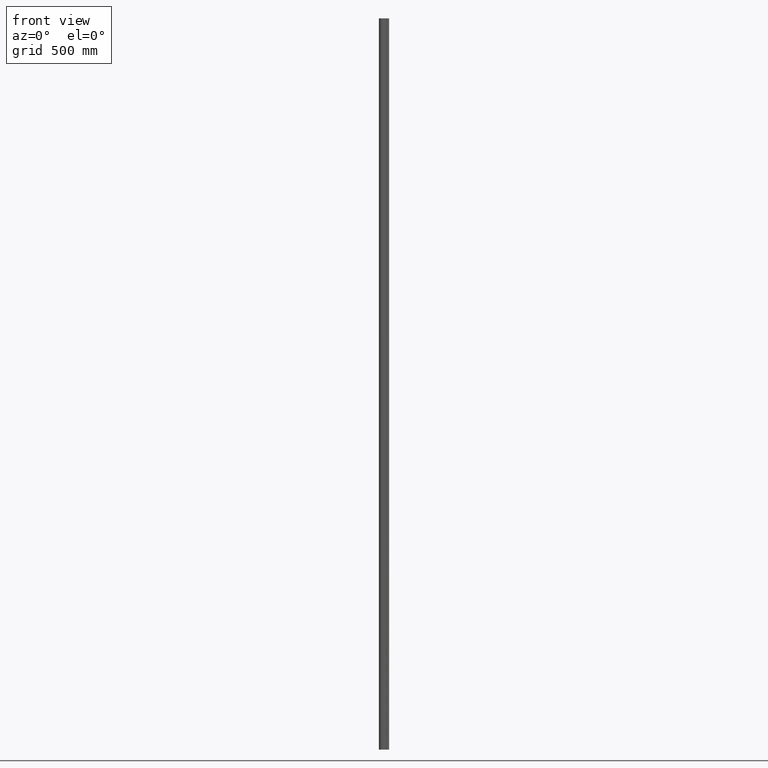
[diagram: clean part render]
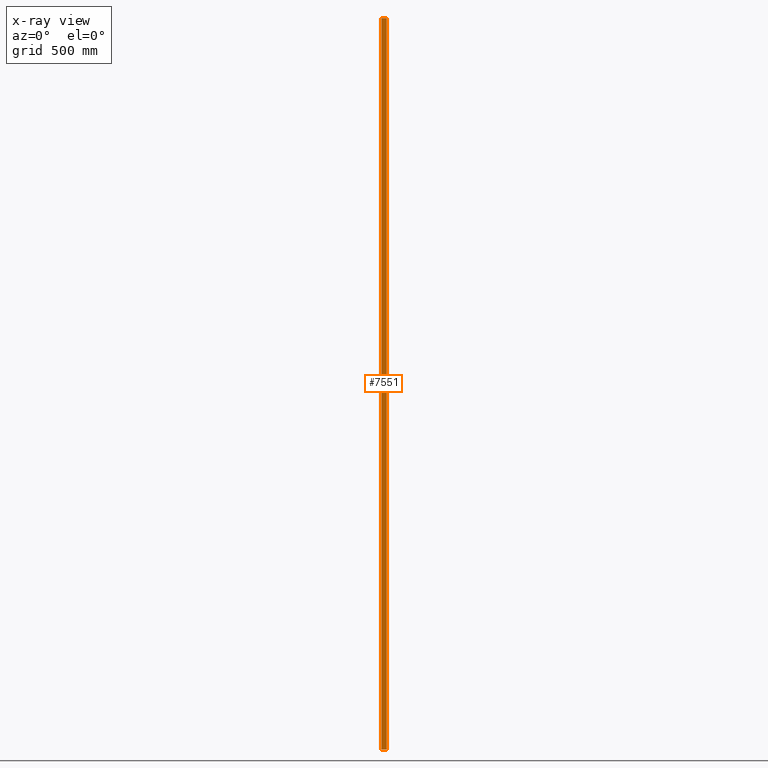
[diagram: x-ray — body ghosted, one internal face saturated and labeled with its STEP entity id]
A machine part, front view, then the same camera in x-ray: the body is ghosted and one INTERNAL B-rep face — a face not visible from any outside direction — is saturated and labeled: STEP entity #7551.
In plain terms, the highlighted planar face has unit normal (0, -1, 0).
Its self-contained STEP definition (entity closure, byte-faithful):
#1768 = VECTOR ( 'NONE', #13989, 1000.000000000000000 ) ;
#1779 = VERTEX_POINT ( 'NONE', #15130 ) ;
#3019 = VECTOR ( 'NONE', #16638, 1000.000000000000000 ) ;
#3487 = PLANE ( 'NONE',  #14673 ) ;
#3736 = VERTEX_POINT ( 'NONE', #4432 ) ;
#4157 = ORIENTED_EDGE ( 'NONE', *, *, #12880, .T. ) ;
#4432 = CARTESIAN_POINT ( 'NONE',  ( 11.50000000000000178, 24.70787098304328566, 1500.000000000000000 ) ) ;
#4671 = DIRECTION ( 'NONE',  ( 0.000000000000000000, -1.000000000000000000, 0.000000000000000000 ) ) ;
#5187 = ORIENTED_EDGE ( 'NONE', *, *, #6642, .T. ) ;
#6642 = EDGE_CURVE ( 'NONE', #1779, #16636, #7392, .T. ) ;
#7185 = VECTOR ( 'NONE', #10176, 1000.000000000000000 ) ;
#7392 = LINE ( 'NONE', #12137, #13036 ) ;
#7551 = ADVANCED_FACE ( 'NONE', ( #14449 ), #3487, .F. ) ;
#8458 = DIRECTION ( 'NONE',  ( 0.000000000000000000, -0.000000000000000000, -1.000000000000000000 ) ) ;
#9473 = CARTESIAN_POINT ( 'NONE',  ( 11.50000000000000178, 24.70787098304328566, -1500.000000000000000 ) ) ;
#10036 = LINE ( 'NONE', #16602, #7185 ) ;
#10047 = CARTESIAN_POINT ( 'NONE',  ( 11.50000000000000178, 24.70787098304328566, -1500.000000000000000 ) ) ;
#10165 = EDGE_CURVE ( 'NONE', #1779, #13873, #16323, .T. ) ;
#10176 = DIRECTION ( 'NONE',  ( 1.000000000000000000, 0.000000000000000000, 0.000000000000000000 ) ) ;
#10319 = ORIENTED_EDGE ( 'NONE', *, *, #10165, .F. ) ;
#10819 = LINE ( 'NONE', #10047, #1768 ) ;
#10931 = CARTESIAN_POINT ( 'NONE',  ( -11.49999999999999822, 24.70787098304328566, 1500.000000000000000 ) ) ;
#11888 = ORIENTED_EDGE ( 'NONE', *, *, #15889, .F. ) ;
#12137 = CARTESIAN_POINT ( 'NONE',  ( -11.49999999999999822, 24.70787098304328566, -1500.000000000000000 ) ) ;
#12426 = DIRECTION ( 'NONE',  ( 0.000000000000000000, 0.000000000000000000, 1.000000000000000000 ) ) ;
#12880 = EDGE_CURVE ( 'NONE', #16636, #3736, #10036, .T. ) ;
#13036 = VECTOR ( 'NONE', #12426, 1000.000000000000000 ) ;
#13691 = EDGE_LOOP ( 'NONE', ( #4157, #11888, #10319, #5187 ) ) ;
#13873 = VERTEX_POINT ( 'NONE', #9473 ) ;
#13989 = DIRECTION ( 'NONE',  ( 0.000000000000000000, 0.000000000000000000, 1.000000000000000000 ) ) ;
#14449 = FACE_OUTER_BOUND ( 'NONE', #13691, .T. ) ;
#14673 = AXIS2_PLACEMENT_3D ( 'NONE', #16198, #4671, #8458 ) ;
#15130 = CARTESIAN_POINT ( 'NONE',  ( -11.49999999999999822, 24.70787098304328566, -1500.000000000000000 ) ) ;
#15889 = EDGE_CURVE ( 'NONE', #13873, #3736, #10819, .T. ) ;
#16198 = CARTESIAN_POINT ( 'NONE',  ( -11.49999999999999822, 24.70787098304328566, -1500.000000000000000 ) ) ;
#16323 = LINE ( 'NONE', #16583, #3019 ) ;
#16583 = CARTESIAN_POINT ( 'NONE',  ( -11.49999999999999822, 24.70787098304328566, -1500.000000000000000 ) ) ;
#16602 = CARTESIAN_POINT ( 'NONE',  ( -11.49999999999999822, 24.70787098304328566, 1500.000000000000000 ) ) ;
#16636 = VERTEX_POINT ( 'NONE', #10931 ) ;
#16638 = DIRECTION ( 'NONE',  ( 1.000000000000000000, 0.000000000000000000, 0.000000000000000000 ) ) ;